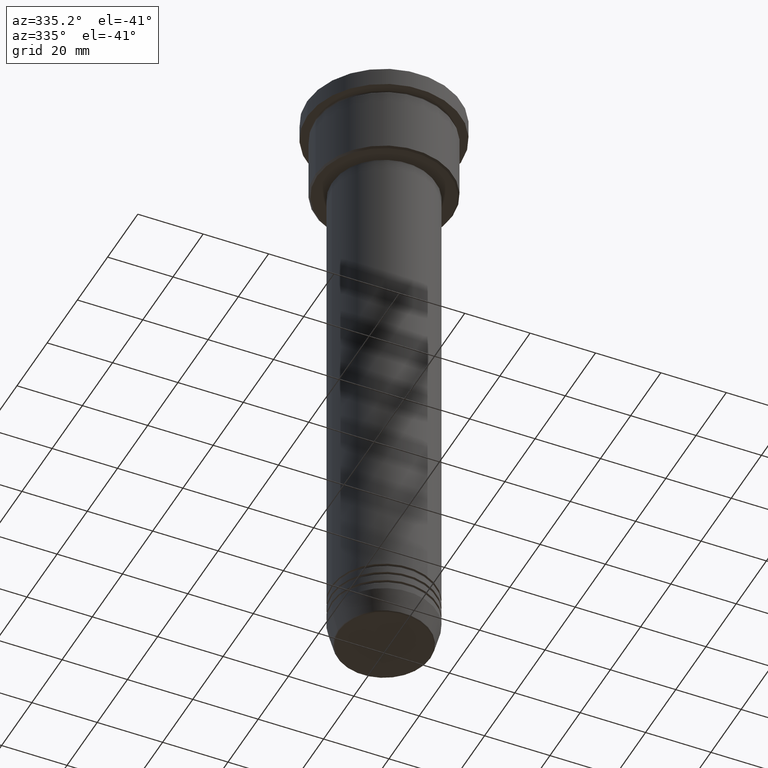
[diagram: clean part render]
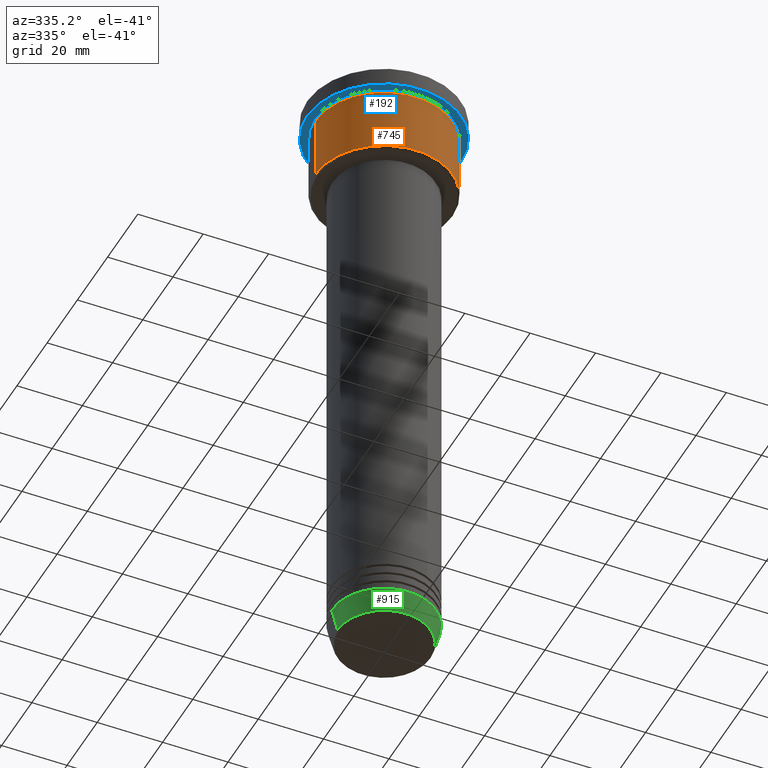
[diagram: same view with three faces highlighted in distinct colors, each labeled with its STEP entity id]
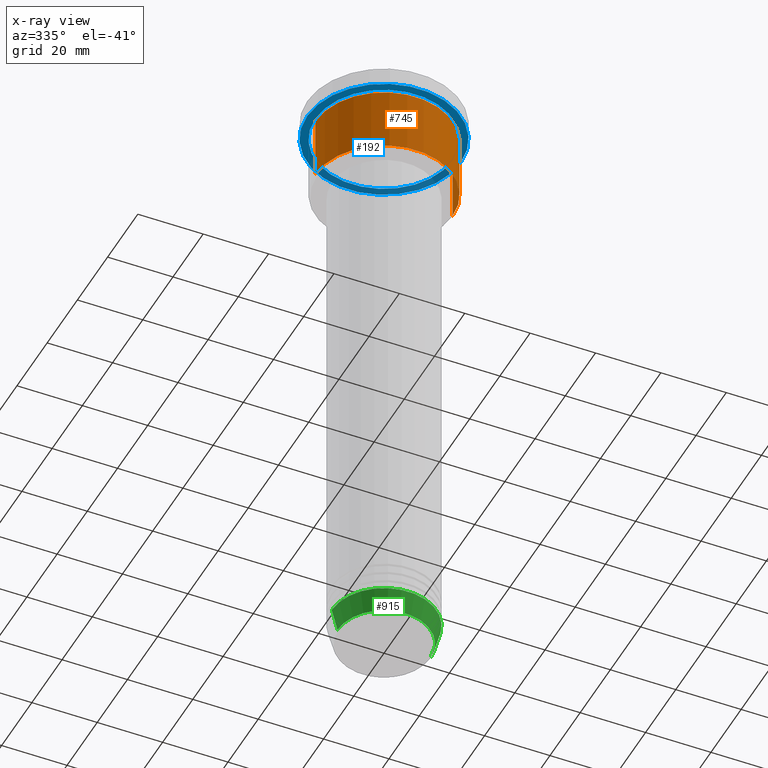
[diagram: x-ray of the same camera — body ghosted, the three highlighted faces saturated]
A machine part, auxiliary view with three faces highlighted in distinct colors.
The next image is the same camera in x-ray (body ghosted, the three faces saturated) — at least one of them is partly hidden behind the body in this view.
Their STEP definitions:

[orange] entity #745 — the highlighted cylindrical surface (partial cylindrical patch) has radius 21 mm, axis along (-0, -0, 1).
#37 = AXIS2_PLACEMENT_3D ( 'NONE', #315, #686, #1040 ) ;
#55 = CARTESIAN_POINT ( 'NONE',  ( 21.00000000000000000, 0.000000000000000000, 0.000000000000000000 ) ) ;
#71 = VERTEX_POINT ( 'NONE', #992 ) ;
#83 = VECTOR ( 'NONE', #334, 1000.000000000000000 ) ;
#126 = DIRECTION ( 'NONE',  ( 1.000000000000000000, 0.000000000000000000, 0.000000000000000000 ) ) ;
#135 = DIRECTION ( 'NONE',  ( -0.000000000000000000, -0.000000000000000000, 1.000000000000000000 ) ) ;
#152 = CARTESIAN_POINT ( 'NONE',  ( 0.000000000000000000, 0.000000000000000000, 0.000000000000000000 ) ) ;
#164 = DIRECTION ( 'NONE',  ( -0.000000000000000000, -0.000000000000000000, 1.000000000000000000 ) ) ;
#217 = ORIENTED_EDGE ( 'NONE', *, *, #1056, .T. ) ;
#224 = LINE ( 'NONE', #55, #1147 ) ;
#253 = CARTESIAN_POINT ( 'NONE',  ( 0.000000000000000000, 0.000000000000000000, -26.49999999999998934 ) ) ;
#315 = CARTESIAN_POINT ( 'NONE',  ( 0.000000000000000000, 0.000000000000000000, -6.999999999999994671 ) ) ;
#332 = CARTESIAN_POINT ( 'NONE',  ( -21.00000000000000000, 2.571758278209441661E-15, -26.49999999999998934 ) ) ;
#334 = DIRECTION ( 'NONE',  ( -0.000000000000000000, -0.000000000000000000, 1.000000000000000000 ) ) ;
#342 = VERTEX_POINT ( 'NONE', #332 ) ;
#418 = DIRECTION ( 'NONE',  ( -0.000000000000000000, -0.000000000000000000, 1.000000000000000000 ) ) ;
#429 = FACE_OUTER_BOUND ( 'NONE', #714, .T. ) ;
#524 = CIRCLE ( 'NONE', #37, 21.00000000000000000 ) ;
#606 = ORIENTED_EDGE ( 'NONE', *, *, #866, .T. ) ;
#646 = CARTESIAN_POINT ( 'NONE',  ( 21.00000000000000000, 0.000000000000000000, -26.49999999999998934 ) ) ;
#686 = DIRECTION ( 'NONE',  ( -0.000000000000000000, -0.000000000000000000, 1.000000000000000000 ) ) ;
#714 = EDGE_LOOP ( 'NONE', ( #764, #217, #606, #851 ) ) ;
#719 = CARTESIAN_POINT ( 'NONE',  ( 21.00000000000000000, 0.000000000000000000, -6.999999999999994671 ) ) ;
#745 = ADVANCED_FACE ( 'NONE', ( #429 ), #1047, .T. ) ;
#764 = ORIENTED_EDGE ( 'NONE', *, *, #850, .F. ) ;
#776 = CARTESIAN_POINT ( 'NONE',  ( -21.00000000000000000, 2.571758278209441661E-15, 0.000000000000000000 ) ) ;
#785 = LINE ( 'NONE', #776, #83 ) ;
#812 = DIRECTION ( 'NONE',  ( -1.000000000000000000, 0.000000000000000000, 0.000000000000000000 ) ) ;
#825 = AXIS2_PLACEMENT_3D ( 'NONE', #152, #135, #126 ) ;
#850 = EDGE_CURVE ( 'NONE', #342, #71, #785, .T. ) ;
#851 = ORIENTED_EDGE ( 'NONE', *, *, #864, .F. ) ;
#864 = EDGE_CURVE ( 'NONE', #71, #1004, #524, .T. ) ;
#866 = EDGE_CURVE ( 'NONE', #978, #1004, #224, .T. ) ;
#889 = AXIS2_PLACEMENT_3D ( 'NONE', #253, #164, #812 ) ;
#978 = VERTEX_POINT ( 'NONE', #646 ) ;
#992 = CARTESIAN_POINT ( 'NONE',  ( -21.00000000000000000, 2.571758278209441661E-15, -6.999999999999994671 ) ) ;
#1004 = VERTEX_POINT ( 'NONE', #719 ) ;
#1040 = DIRECTION ( 'NONE',  ( 1.000000000000000000, 0.000000000000000000, 0.000000000000000000 ) ) ;
#1047 = CYLINDRICAL_SURFACE ( 'NONE', #825, 21.00000000000000000 ) ;
#1056 = EDGE_CURVE ( 'NONE', #342, #978, #1090, .T. ) ;
#1090 = CIRCLE ( 'NONE', #889, 21.00000000000000000 ) ;
#1147 = VECTOR ( 'NONE', #418, 1000.000000000000000 ) ;

[blue] entity #192 — the highlighted planar face has unit normal (0, 0, -1).
#1 = CARTESIAN_POINT ( 'NONE',  ( 0.000000000000000000, 23.50000000000000000, -5.999999999999994671 ) ) ;
#24 = DIRECTION ( 'NONE',  ( 1.000000000000000000, 0.000000000000000000, 0.000000000000000000 ) ) ;
#41 = DIRECTION ( 'NONE',  ( -0.000000000000000000, -0.000000000000000000, 1.000000000000000000 ) ) ;
#43 = ORIENTED_EDGE ( 'NONE', *, *, #262, .F. ) ;
#72 = CARTESIAN_POINT ( 'NONE',  ( 21.00000000000000000, 2.571758278209441661E-15, -5.999999999999994671 ) ) ;
#134 = AXIS2_PLACEMENT_3D ( 'NONE', #1, #557, #364 ) ;
#192 = ADVANCED_FACE ( 'NONE', ( #197, #277 ), #565, .T. ) ;
#197 = FACE_BOUND ( 'NONE', #456, .T. ) ;
#205 = EDGE_CURVE ( 'NONE', #289, #729, #1073, .T. ) ;
#213 = DIRECTION ( 'NONE',  ( 1.000000000000000000, 0.000000000000000000, 0.000000000000000000 ) ) ;
#250 = EDGE_CURVE ( 'NONE', #953, #805, #816, .T. ) ;
#262 = EDGE_CURVE ( 'NONE', #805, #953, #368, .T. ) ;
#277 = FACE_OUTER_BOUND ( 'NONE', #886, .T. ) ;
#283 = AXIS2_PLACEMENT_3D ( 'NONE', #762, #584, #24 ) ;
#289 = VERTEX_POINT ( 'NONE', #573 ) ;
#292 = CARTESIAN_POINT ( 'NONE',  ( 0.000000000000000000, 0.000000000000000000, -5.999999999999994671 ) ) ;
#364 = DIRECTION ( 'NONE',  ( -1.000000000000000000, 0.000000000000000000, -0.000000000000000000 ) ) ;
#368 = CIRCLE ( 'NONE', #283, 23.50000000000000000 ) ;
#373 = ORIENTED_EDGE ( 'NONE', *, *, #784, .T. ) ;
#404 = CARTESIAN_POINT ( 'NONE',  ( 0.000000000000000000, 0.000000000000000000, -5.999999999999994671 ) ) ;
#405 = ORIENTED_EDGE ( 'NONE', *, *, #250, .F. ) ;
#411 = CARTESIAN_POINT ( 'NONE',  ( -23.50000000000000000, 2.877919977996280320E-15, -5.999999999999994671 ) ) ;
#456 = EDGE_LOOP ( 'NONE', ( #1016, #373 ) ) ;
#557 = DIRECTION ( 'NONE',  ( 0.000000000000000000, 0.000000000000000000, -1.000000000000000000 ) ) ;
#565 = PLANE ( 'NONE',  #134 ) ;
#573 = CARTESIAN_POINT ( 'NONE',  ( -21.00000000000000000, 0.000000000000000000, -5.999999999999994671 ) ) ;
#584 = DIRECTION ( 'NONE',  ( -0.000000000000000000, -0.000000000000000000, 1.000000000000000000 ) ) ;
#594 = DIRECTION ( 'NONE',  ( -1.000000000000000000, 0.000000000000000000, 0.000000000000000000 ) ) ;
#610 = CARTESIAN_POINT ( 'NONE',  ( 23.50000000000000000, 0.000000000000000000, -5.999999999999994671 ) ) ;
#645 = DIRECTION ( 'NONE',  ( -0.000000000000000000, -0.000000000000000000, 1.000000000000000000 ) ) ;
#723 = AXIS2_PLACEMENT_3D ( 'NONE', #292, #1039, #213 ) ;
#729 = VERTEX_POINT ( 'NONE', #72 ) ;
#762 = CARTESIAN_POINT ( 'NONE',  ( 0.000000000000000000, 0.000000000000000000, -5.999999999999994671 ) ) ;
#784 = EDGE_CURVE ( 'NONE', #729, #289, #797, .T. ) ;
#797 = CIRCLE ( 'NONE', #1125, 21.00000000000000000 ) ;
#805 = VERTEX_POINT ( 'NONE', #411 ) ;
#816 = CIRCLE ( 'NONE', #723, 23.50000000000000000 ) ;
#837 = CARTESIAN_POINT ( 'NONE',  ( 0.000000000000000000, 0.000000000000000000, -5.999999999999994671 ) ) ;
#886 = EDGE_LOOP ( 'NONE', ( #405, #43 ) ) ;
#953 = VERTEX_POINT ( 'NONE', #610 ) ;
#1005 = DIRECTION ( 'NONE',  ( -1.000000000000000000, 0.000000000000000000, 0.000000000000000000 ) ) ;
#1012 = AXIS2_PLACEMENT_3D ( 'NONE', #837, #645, #1005 ) ;
#1016 = ORIENTED_EDGE ( 'NONE', *, *, #205, .T. ) ;
#1039 = DIRECTION ( 'NONE',  ( -0.000000000000000000, -0.000000000000000000, 1.000000000000000000 ) ) ;
#1073 = CIRCLE ( 'NONE', #1012, 21.00000000000000000 ) ;
#1125 = AXIS2_PLACEMENT_3D ( 'NONE', #404, #41, #594 ) ;

[green] entity #915 — the highlighted conical surface has half-angle 15 deg.
#54 = EDGE_CURVE ( 'NONE', #555, #391, #1159, .T. ) ;
#86 = CONICAL_SURFACE ( 'NONE', #178, 16.00000000000000000, 0.2617993877991500740 ) ;
#147 = DIRECTION ( 'NONE',  ( -0.2588190451025213501, 3.169619151431772337E-17, 0.9659258262890680902 ) ) ;
#178 = AXIS2_PLACEMENT_3D ( 'NONE', #357, #917, #647 ) ;
#179 = VECTOR ( 'NONE', #632, 1000.000000000000000 ) ;
#249 = VECTOR ( 'NONE', #147, 1000.000000000000000 ) ;
#257 = CARTESIAN_POINT ( 'NONE',  ( 16.00000000000000000, 0.000000000000000000, -185.0000000000000284 ) ) ;
#280 = AXIS2_PLACEMENT_3D ( 'NONE', #1084, #1015, #1182 ) ;
#302 = CIRCLE ( 'NONE', #396, 14.22365507213719660 ) ;
#357 = CARTESIAN_POINT ( 'NONE',  ( 0.000000000000000000, 0.000000000000000000, -185.0000000000000284 ) ) ;
#371 = DIRECTION ( 'NONE',  ( -0.000000000000000000, -0.000000000000000000, 1.000000000000000000 ) ) ;
#391 = VERTEX_POINT ( 'NONE', #1163 ) ;
#396 = AXIS2_PLACEMENT_3D ( 'NONE', #923, #371, #728 ) ;
#486 = LINE ( 'NONE', #1099, #179 ) ;
#489 = EDGE_CURVE ( 'NONE', #1101, #893, #486, .T. ) ;
#550 = FACE_OUTER_BOUND ( 'NONE', #660, .T. ) ;
#555 = VERTEX_POINT ( 'NONE', #884 ) ;
#628 = CARTESIAN_POINT ( 'NONE',  ( -16.00000000000000000, 1.959434878635765131E-15, -185.0000000000000284 ) ) ;
#632 = DIRECTION ( 'NONE',  ( 0.2588190451025213501, 0.000000000000000000, 0.9659258262890680902 ) ) ;
#647 = DIRECTION ( 'NONE',  ( 1.000000000000000000, 0.000000000000000000, 0.000000000000000000 ) ) ;
#660 = EDGE_LOOP ( 'NONE', ( #811, #912, #718, #1173 ) ) ;
#718 = ORIENTED_EDGE ( 'NONE', *, *, #489, .T. ) ;
#728 = DIRECTION ( 'NONE',  ( 1.000000000000000000, 0.000000000000000000, 0.000000000000000000 ) ) ;
#744 = CARTESIAN_POINT ( 'NONE',  ( 14.22365507213719660, 0.000000000000000000, -191.6294095225512706 ) ) ;
#811 = ORIENTED_EDGE ( 'NONE', *, *, #54, .F. ) ;
#813 = CIRCLE ( 'NONE', #280, 16.00000000000000000 ) ;
#884 = CARTESIAN_POINT ( 'NONE',  ( -14.22365507213719660, 1.850665122131324126E-15, -191.6294095225512706 ) ) ;
#893 = VERTEX_POINT ( 'NONE', #257 ) ;
#912 = ORIENTED_EDGE ( 'NONE', *, *, #1098, .T. ) ;
#915 = ADVANCED_FACE ( 'NONE', ( #550 ), #86, .T. ) ;
#917 = DIRECTION ( 'NONE',  ( -0.000000000000000000, -0.000000000000000000, 1.000000000000000000 ) ) ;
#923 = CARTESIAN_POINT ( 'NONE',  ( 0.000000000000000000, 0.000000000000000000, -191.6294095225512706 ) ) ;
#1015 = DIRECTION ( 'NONE',  ( -0.000000000000000000, -0.000000000000000000, 1.000000000000000000 ) ) ;
#1084 = CARTESIAN_POINT ( 'NONE',  ( 0.000000000000000000, 0.000000000000000000, -185.0000000000000284 ) ) ;
#1098 = EDGE_CURVE ( 'NONE', #555, #1101, #302, .T. ) ;
#1099 = CARTESIAN_POINT ( 'NONE',  ( 16.00000000000000000, 0.000000000000000000, -185.0000000000000284 ) ) ;
#1101 = VERTEX_POINT ( 'NONE', #744 ) ;
#1115 = EDGE_CURVE ( 'NONE', #391, #893, #813, .T. ) ;
#1159 = LINE ( 'NONE', #628, #249 ) ;
#1163 = CARTESIAN_POINT ( 'NONE',  ( -16.00000000000000000, 1.959434878635765131E-15, -185.0000000000000284 ) ) ;
#1173 = ORIENTED_EDGE ( 'NONE', *, *, #1115, .F. ) ;
#1182 = DIRECTION ( 'NONE',  ( 1.000000000000000000, 0.000000000000000000, 0.000000000000000000 ) ) ;